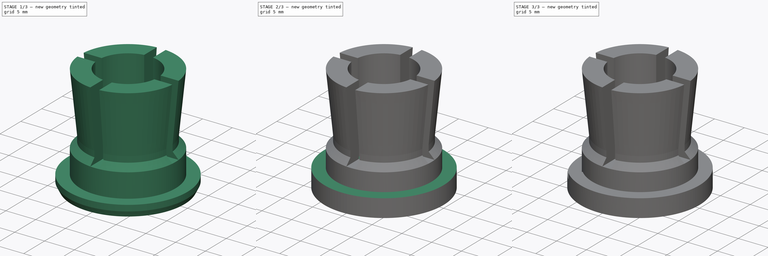
[diagram: build sequence overview — one tinted view per stage of 3, left to right]
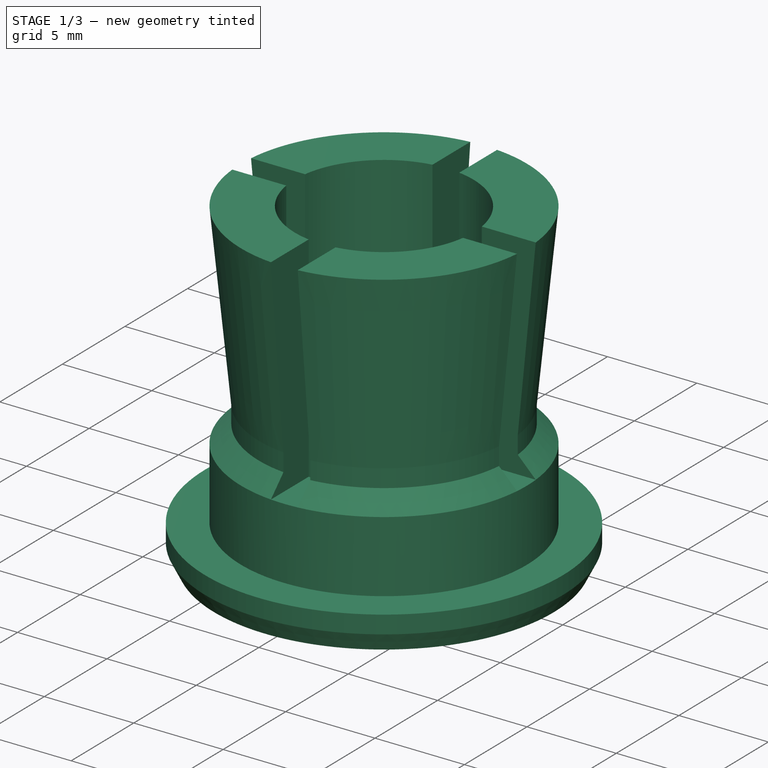
[diagram: stage 1 of 3 — iso view after this stage's code; geometry added in this stage tinted green]
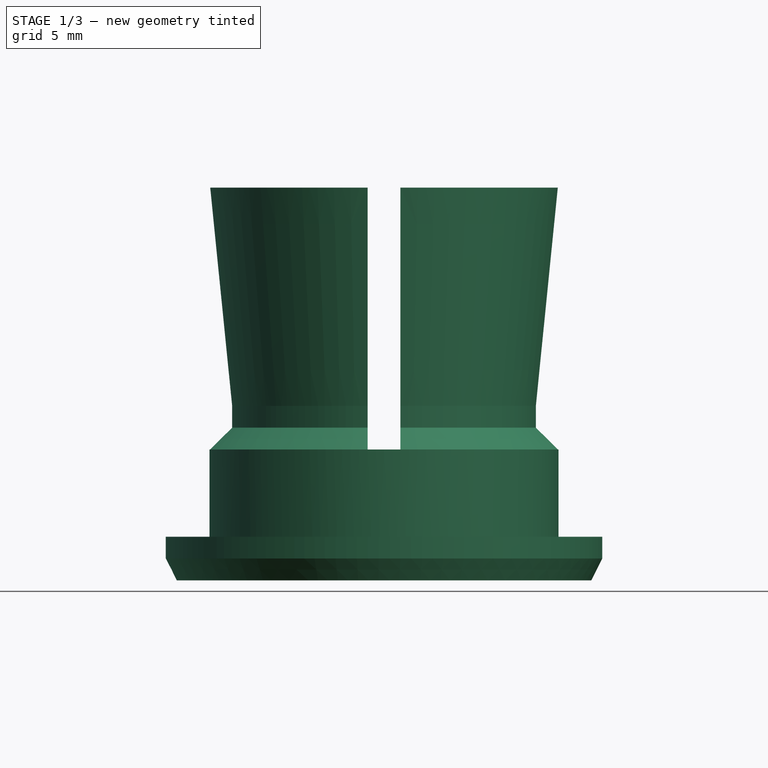
[diagram: stage 1 of 3 — front view after this stage's code; geometry added in this stage tinted green]
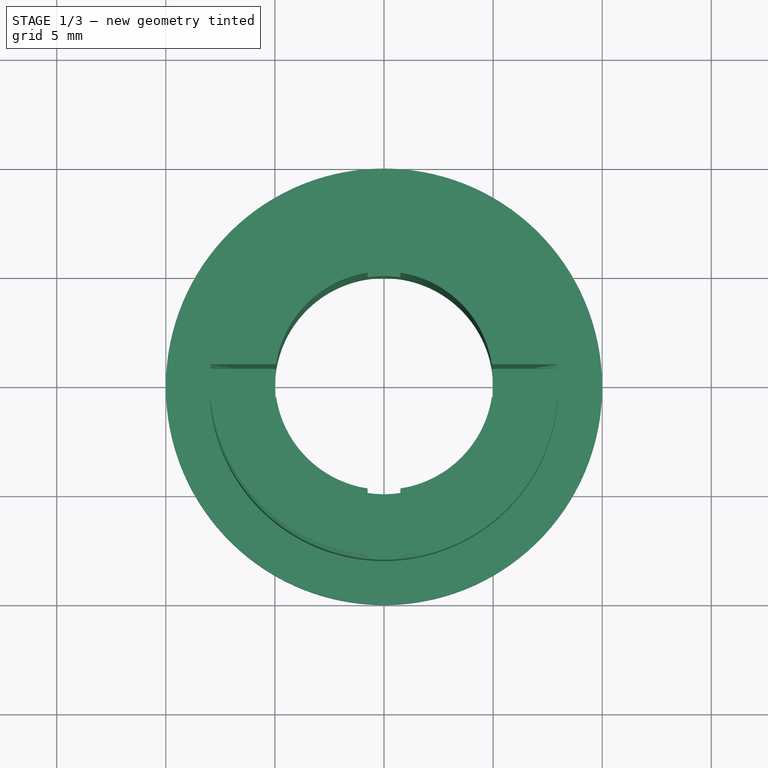
[diagram: stage 1 of 3 — top view after this stage's code; geometry added in this stage tinted green]
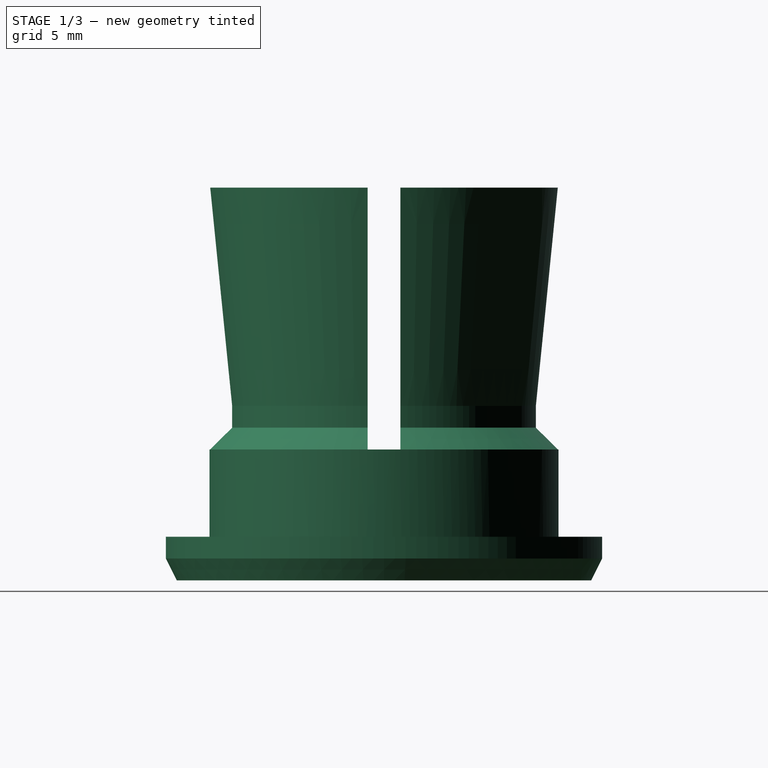
[diagram: stage 1 of 3 — right view after this stage's code; geometry added in this stage tinted green]
FCSTD DOCUMENT  (FreeCAD 2024.2R37240 (Git))
Label: AuxPower1U AC Grommet
License: All rights reserved
LicenseURL: https://en.wikipedia.org/wiki/All_rights_reserved
objects: Sketcher::SketchObject×5, PartDesign::Pocket×3, PartDesign::Body×2, PartDesign::Pad×1, PartDesign::Revolution×1, App::TextDocument×1
note: 17 computed .brp shape members not serialized (recipe doc carries the construction recipe); baked Part::Feature solids carry a one-line shape summary decoded from their .brp

FEATURE [PartDesign::Body] Body  label="Ring"
  Group = -> [Sketch,Pad,Sketch002,Pocket,Sketch003,Pocket001]
  Origin = -> Origin
  Placement = pos=(30,0,0) rot=(0,0,1;0rad)
  Tip = -> Pocket001
FEATURE [Sketcher::SketchObject] Sketch004
  AttachmentSupport = -> [XZ_Plane001]
  FullyConstrained = true
  MapMode = 5
  Placement = pos=(0,0,0) rot=(1,0,0;1.5708rad)
  sketch-geometry (10):
    g0: LineSegment StartX=5 StartY=0 StartZ=0 EndX=5 EndY=18 EndZ=0
    g1: LineSegment StartX=5 StartY=18 StartZ=0 EndX=8 EndY=18 EndZ=0
    g2: LineSegment StartX=5 StartY=0 StartZ=0 EndX=9.5 EndY=0 EndZ=0
    g3: LineSegment StartX=10 StartY=1 StartZ=0 EndX=10 EndY=2 EndZ=0
    g4: LineSegment StartX=9.5 StartY=0 StartZ=0 EndX=10 EndY=1 EndZ=0
    g5: LineSegment StartX=10 StartY=2 StartZ=0 EndX=8 EndY=2 EndZ=0
    g6: LineSegment StartX=8 StartY=2 StartZ=0 EndX=8 EndY=6 EndZ=0
    g7: LineSegment StartX=7 StartY=7 StartZ=0 EndX=7 EndY=8 EndZ=0
    g8: LineSegment StartX=8 StartY=6 StartZ=0 EndX=7 EndY=7 EndZ=0
    g9: LineSegment StartX=7 StartY=8 StartZ=0 EndX=8 EndY=18 EndZ=0
  constraints (33):
    c: Distance(g0) = 18  'Height'
    c: DistanceX(g-1,g0) = 5  'HoleRadius'
    c: Vertical(g0)
    c: DistanceY(g0) = 0
    c: Coincident(g1,g0)
    c: Horizontal(g1)
    c: Coincident(g2,g0)
    c: PointOnObject(g2,g-1)
    c: DistanceX(g1,g1) = 3
    c: DistanceX(g2,g2) = 4.5
    c: Distance(g3) = 1
    c: DistanceX(g3) = 10
    c: DistanceY(g2,g3) = 1
    c: Coincident(g4,g2)
    c: Coincident(g4,g3)
    c: DistanceX(g-1,g3) = 10
    c: DistanceY(g2,g3) = 1
    c: Vertical(g3,g3)
    c: DistanceX(g0,g3) = 5
    c: Distance(g5) = 2
    c: Coincident(g5,g3)
    c: Horizontal(g5)
    c: Distance(g6) = 4
    c: Coincident(g6,g5)
    c: Vertical(g6)
    c: Vertical(g7)
    c: DistanceY(g6,g7) = 1
    c: DistanceX(g7) = 7
    c: DistanceY(g7,g7) = 1
    c: Coincident(g8,g6)
    c: Coincident(g8,g7)
    c: Coincident(g9,g7)
    c: Coincident(g9,g1)
FEATURE [PartDesign::Revolution] Revolution
  Angle = 360
  Angle2 = 60
  Axis = (0,2e-16,1)
  Base = (0,0,0)
  Placement = pos=(0,0,0) rot=(1,0,0;1.5708rad)
  Profile = -> Sketch004
  ReferenceAxis = -> Sketch004 [V_Axis]
  Refine = true
  Suppressed = false
  Type = 0
FEATURE [Sketcher::SketchObject] Sketch005
  AttachmentSupport = -> [Revolution]
  FullyConstrained = true
  MapMode = 5
  Placement = pos=(0,7.9e-15,18) rot=(0,0,1;3.14159rad)
  sketch-geometry (12):
    g0: LineSegment StartX=-9 StartY=0.75 StartZ=0 EndX=-9 EndY=-0.75 EndZ=0
    g1: LineSegment StartX=9 StartY=0.75 StartZ=0 EndX=9 EndY=-0.75 EndZ=0
    g2: LineSegment StartX=-0.75 StartY=9 StartZ=0 EndX=0.75 EndY=9 EndZ=0
    g3: LineSegment StartX=-0.75 StartY=-9 StartZ=0 EndX=0.75 EndY=-9 EndZ=0
    g4: LineSegment StartX=0.75 StartY=-9 StartZ=0 EndX=0.75 EndY=-0.75 EndZ=0
    g5: LineSegment StartX=0.75 StartY=-0.75 StartZ=0 EndX=9 EndY=-0.75 EndZ=0
    g6: LineSegment StartX=9 StartY=0.75 StartZ=0 EndX=0.75 EndY=0.75 EndZ=0
    g7: LineSegment StartX=0.75 StartY=0.75 StartZ=0 EndX=0.75 EndY=9 EndZ=0
    g8: LineSegment StartX=-0.75 StartY=9 StartZ=0 EndX=-0.75 EndY=0.75 EndZ=0
    g9: LineSegment StartX=-0.75 StartY=0.75 StartZ=0 EndX=-9 EndY=0.75 EndZ=0
    g10: LineSegment StartX=-9 StartY=-0.75 StartZ=0 EndX=-0.75 EndY=-0.75 EndZ=0
    g11: LineSegment StartX=-0.75 StartY=-0.75 StartZ=0 EndX=-0.75 EndY=-9 EndZ=0
  constraints (36):
    c: Vertical(g0)
    c: DistanceY(g0,g0) = 1.5
    c: DistanceX(g0,g-1) = 9
    c: DistanceY(g0) = -0.75
    c: Vertical(g1)
    c: DistanceX(g0,g1) = 18
    c: Horizontal(g0,g1)
    c: DistanceY(g1,g1) = 1.5
    c: Horizontal(g2)
    c: DistanceX(g2,g2) = 1.5
    c: DistanceY(g-1,g2) = 9
    c: DistanceX(g2,g-1) = 0.75
    c: Distance(g3) = 1.5
    c: Horizontal(g3)
    c: DistanceX(g3) = -0.75
    c: DistanceY(g3,g-1) = 9
    c: Distance(g4) = 8.25
    c: Coincident(g4,g3)
    c: Vertical(g4)
    c: Coincident(g5,g4)
    c: Coincident(g5,g1)
    c: Distance(g6) = 8.25
    c: Coincident(g6,g1)
    c: Horizontal(g6)
    c: Coincident(g7,g6)
    c: Coincident(g7,g2)
    c: Distance(g8) = 8.25
    c: Coincident(g8,g2)
    c: Vertical(g8)
    c: Coincident(g9,g8)
    c: Coincident(g9,g0)
    c: Distance(g10) = 8.25
    c: Coincident(g10,g0)
    c: Horizontal(g10)
    c: Coincident(g11,g10)
    c: Coincident(g11,g3)
FEATURE [PartDesign::Pocket] Pocket002
  BaseFeature = -> Revolution
  Direction = (0,0,-1)
  Length = 12
  Length2 = 5
  Placement = pos=(0,0,0) rot=(1,0,0;1.5708rad)
  Profile = -> Sketch005
  ReferenceAxis = -> Sketch005 [N_Axis]
  Refine = true
  Suppressed = false
  Type = 0
FEATURE [PartDesign::Body] Body001  label="Base"
  Group = -> [Sketch004,Revolution,Sketch005,Pocket002]
  Origin = -> Origin001
  Tip = -> Pocket002
FEATURE [App::TextDocument] Text_document  label="Comments"
  Text = Body needs to be printed on side
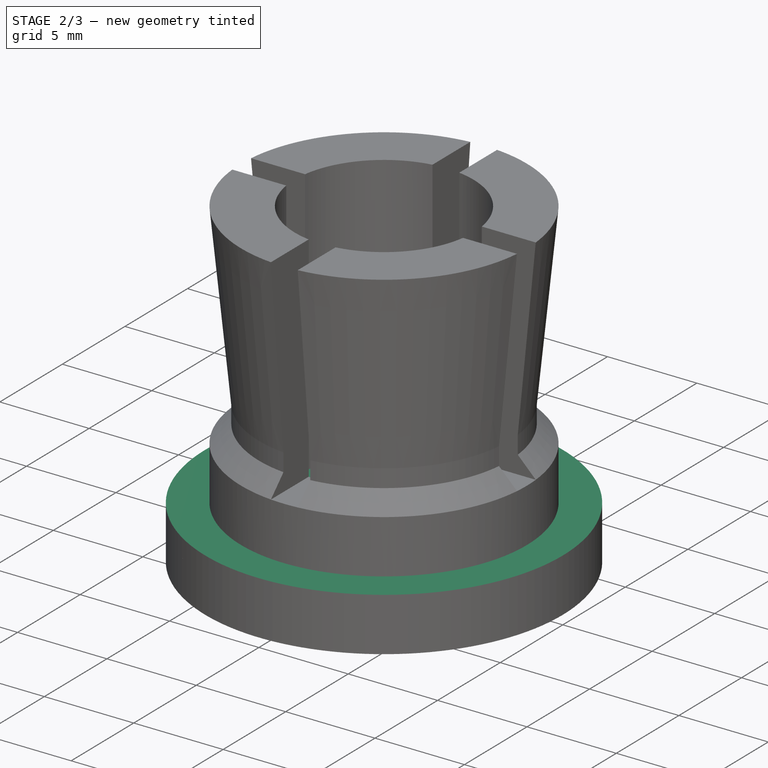
[diagram: stage 2 of 3 — iso view after this stage's code; geometry added in this stage tinted green]
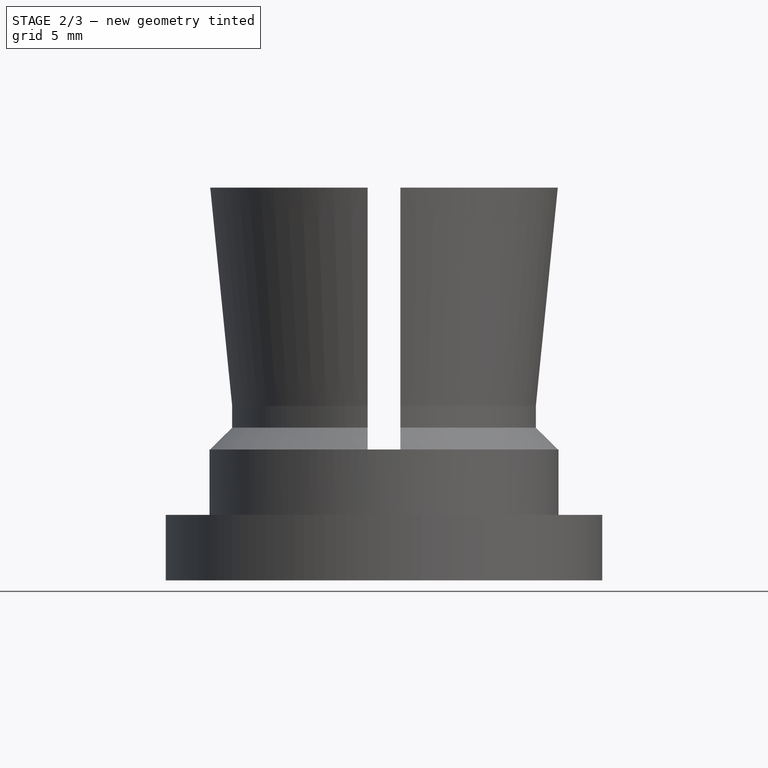
[diagram: stage 2 of 3 — front view after this stage's code; geometry added in this stage tinted green]
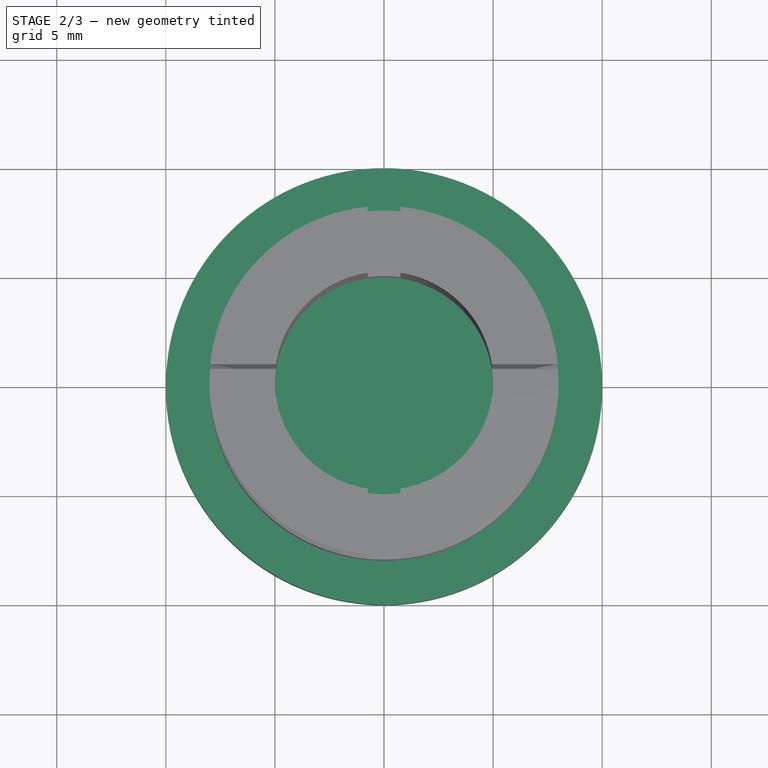
[diagram: stage 2 of 3 — top view after this stage's code; geometry added in this stage tinted green]
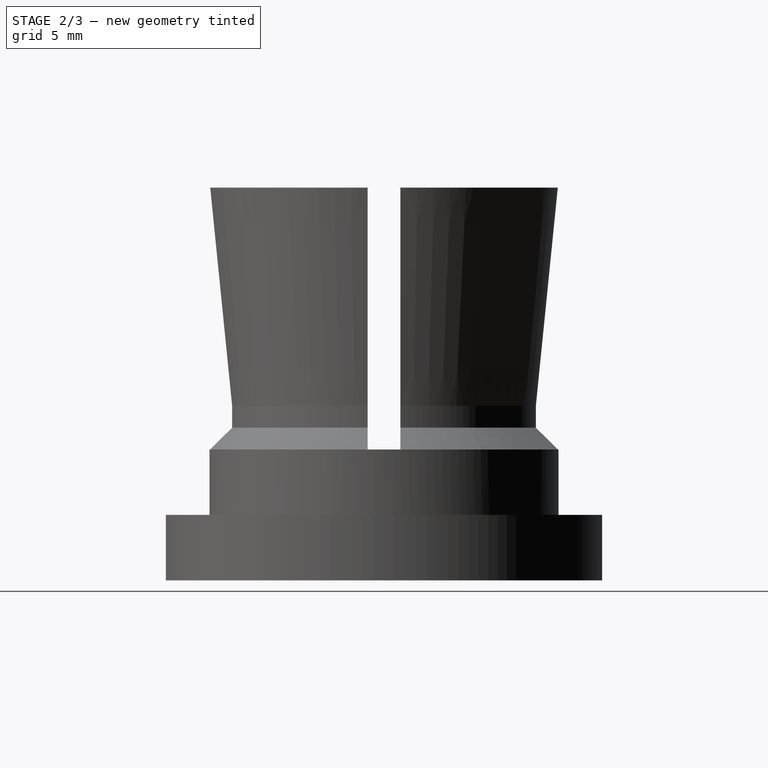
[diagram: stage 2 of 3 — right view after this stage's code; geometry added in this stage tinted green]
FEATURE [Sketcher::SketchObject] Sketch
  AttachmentSupport = -> [XY_Plane]
  FullyConstrained = true
  MapMode = 5
  sketch-geometry (1):
    g0: Circle CenterX=0 CenterY=0 CenterZ=0 NormalX=0 NormalY=0 NormalZ=1 AngleXU=0 Radius=10
  constraints (3):
    c: Horizontal(g0,g-1)  'CenterH'
    c: Vertical(g-1,g0)  'CenterV'
    c: Diameter(g0) = 20
FEATURE [PartDesign::Pad] Pad
  Direction = (0,0,1)
  Length = 3
  Length2 = 10
  Profile = -> Sketch
  ReferenceAxis = -> Sketch [N_Axis]
  Refine = true
  Suppressed = false
  Type = 0
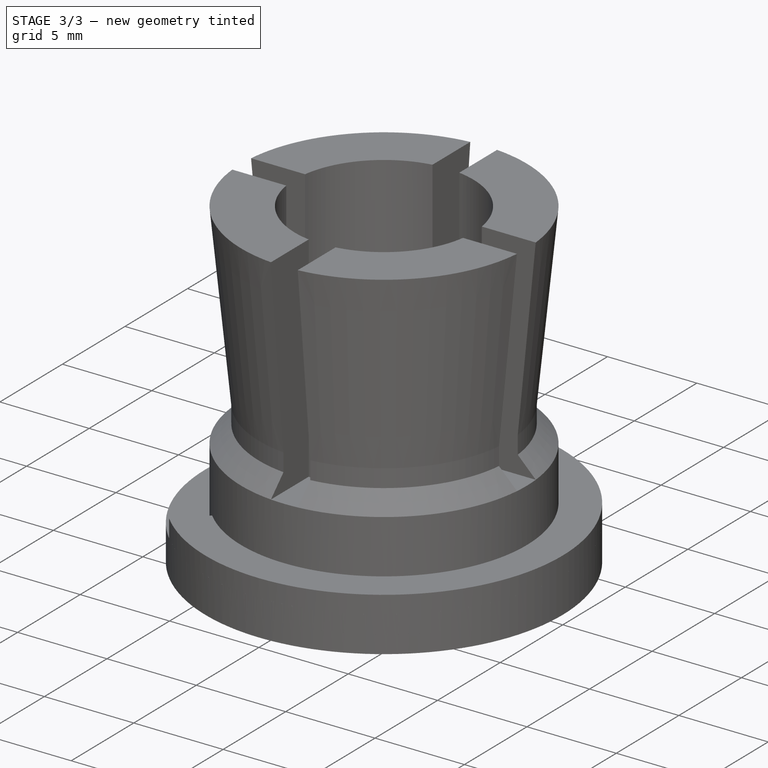
[diagram: stage 3 of 3 — iso view after this stage's code; geometry added in this stage tinted green]
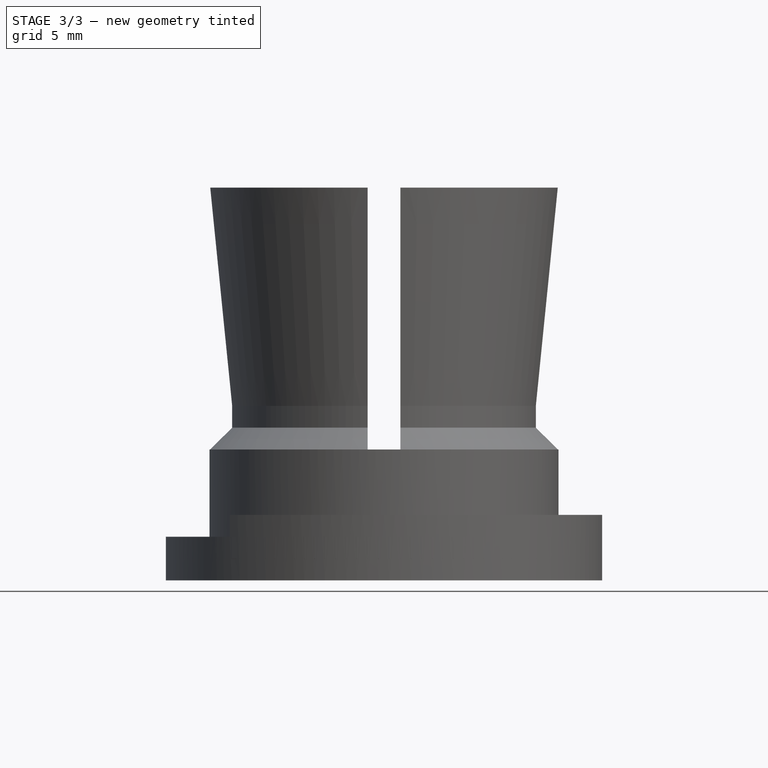
[diagram: stage 3 of 3 — front view after this stage's code; geometry added in this stage tinted green]
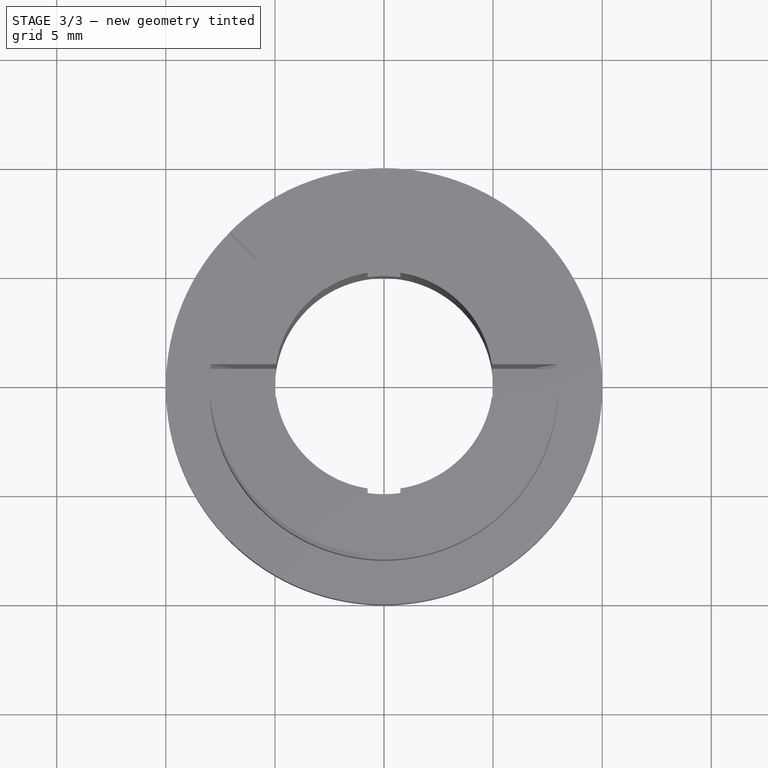
[diagram: stage 3 of 3 — top view after this stage's code; geometry added in this stage tinted green]
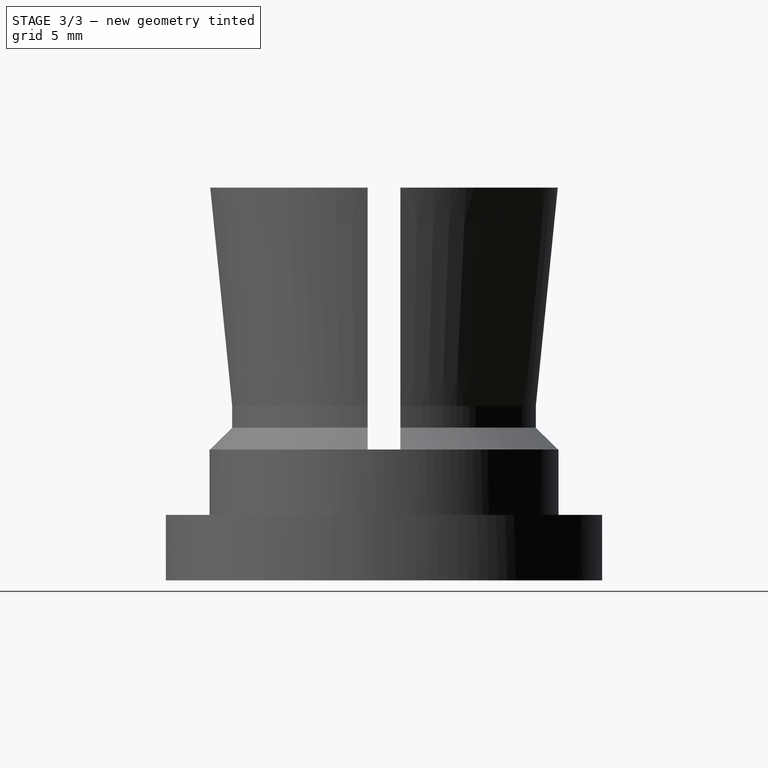
[diagram: stage 3 of 3 — right view after this stage's code; geometry added in this stage tinted green]
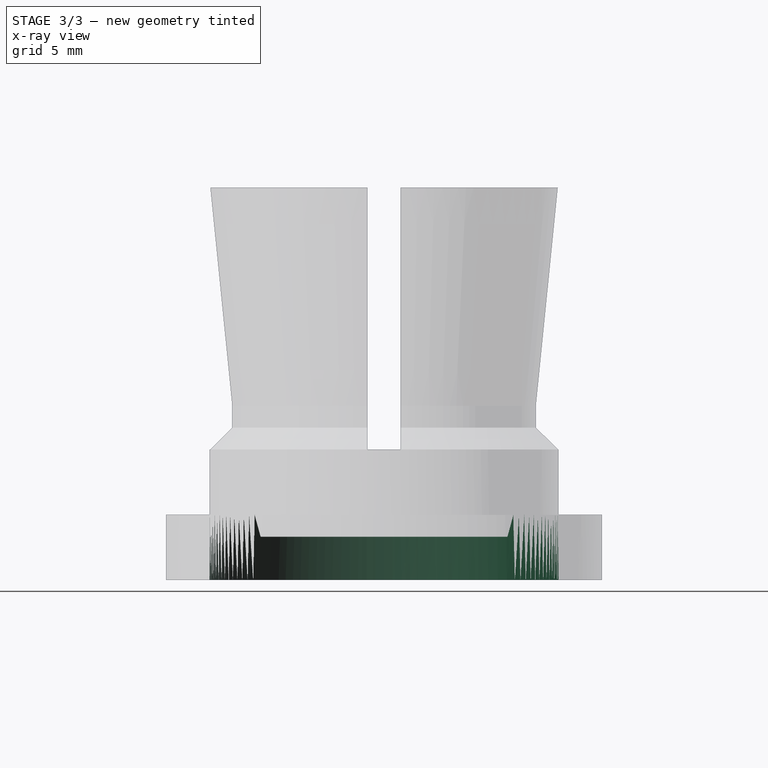
[diagram: stage 3 of 3 — x-ray composite at the right view; earlier geometry ghosted, this stage's added geometry solid]
FEATURE [Sketcher::SketchObject] Sketch002
  FullyConstrained = true
  MapMode = 5
  Placement = pos=(0,0,3) rot=(0,0,1;0rad)
  sketch-geometry (1):
    g0: Circle CenterX=0 CenterY=0 CenterZ=0 NormalX=0 NormalY=0 NormalZ=1 AngleXU=0 Radius=8
  constraints (2):
    c: Diameter(g0) = 16  'HoleDiam'
    c: Coincident(g0,g-1)
FEATURE [PartDesign::Pocket] Pocket
  BaseFeature = -> Pad
  Direction = (0,0,-1)
  Length = 5
  Length2 = 5
  Profile = -> Sketch002
  ReferenceAxis = -> Sketch002 [N_Axis]
  Refine = true
  Suppressed = false
  Type = 0
FEATURE [Sketcher::SketchObject] Sketch003
  AttachmentSupport = -> [Pocket]
  FullyConstrained = true
  MapMode = 5
  Placement = pos=(0,0,3) rot=(0,0,1;0rad)
  sketch-geometry (3):
    g0: ArcOfCircle CenterX=0 CenterY=0 CenterZ=0 NormalX=0 NormalY=0 NormalZ=1 AngleXU=0 Radius=10 StartAngle=2.35619 EndAngle=3.92699
    g1: LineSegment StartX=-7.07107 StartY=7.07107 StartZ=0 EndX=0 EndY=0 EndZ=0
    g2: LineSegment StartX=0 StartY=0 StartZ=0 EndX=-7.07107 EndY=-7.07107 EndZ=0
  constraints (8):
    c: Angle(g0) = 1.5708
    c: Coincident(g0,g-1)
    c: Coincident(g1,g0)
    c: Coincident(g1,g0)
    c: Coincident(g2,g0)
    c: Coincident(g2,g0)
    c: Distance(g1,g1) = 10  'Line1'
    c: Angle(g2,g-2) = 0.785398
FEATURE [PartDesign::Pocket] Pocket001
  BaseFeature = -> Pocket
  Direction = (0,0,-1)
  Length = 1
  Length2 = 5
  Profile = -> Sketch003
  ReferenceAxis = -> Sketch003 [N_Axis]
  Refine = true
  Suppressed = false
  Type = 0
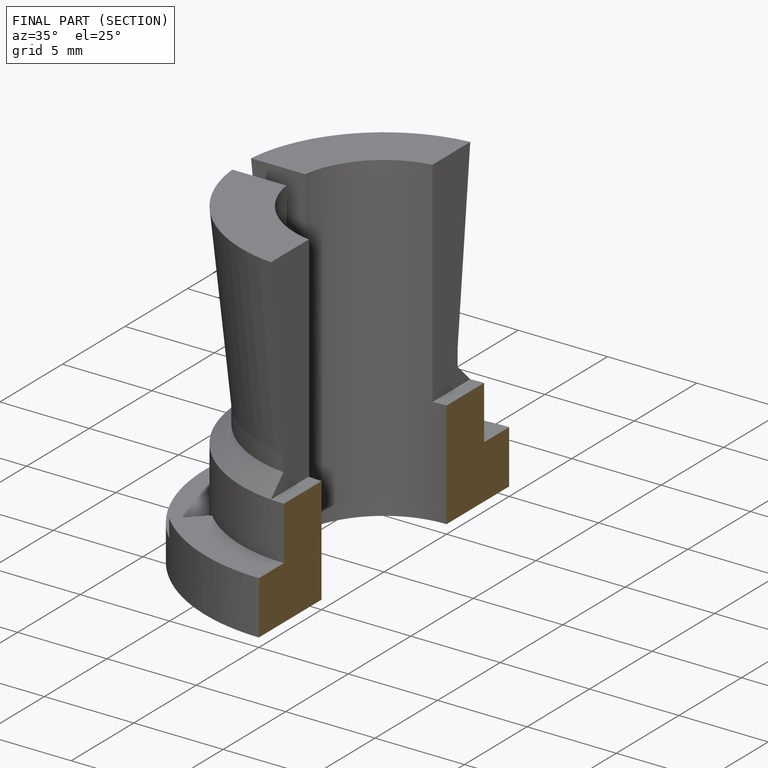
[diagram: finished part — half-section view (interior)]
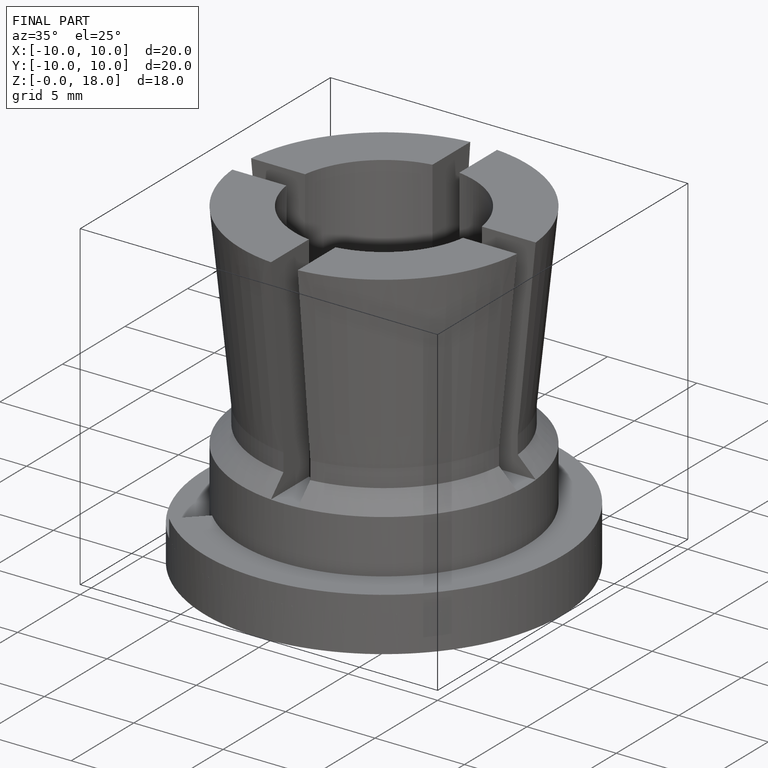
[diagram: finished part — iso view with bounding-box wireframe]
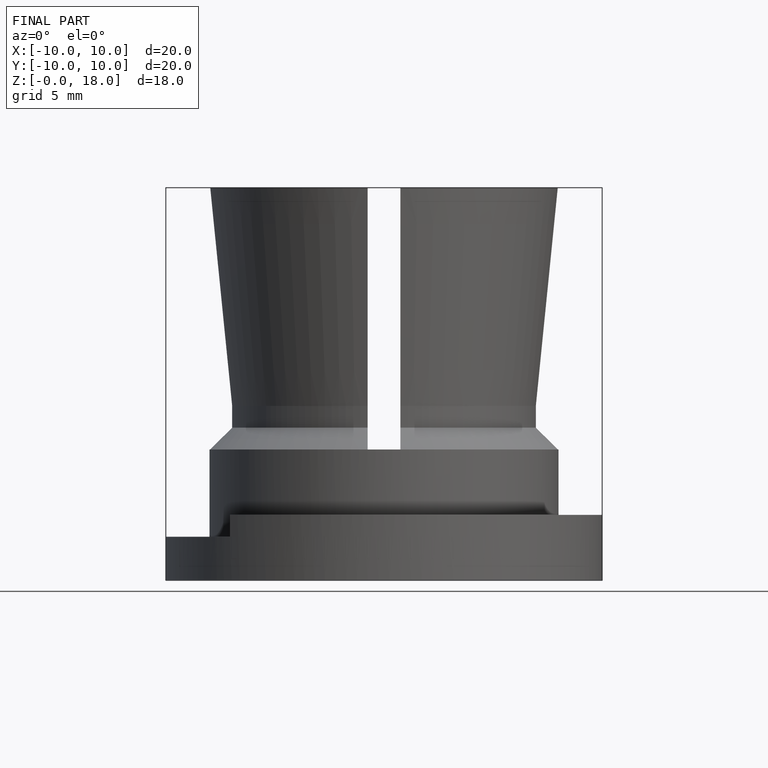
[diagram: finished part — front view with bounding-box wireframe]
